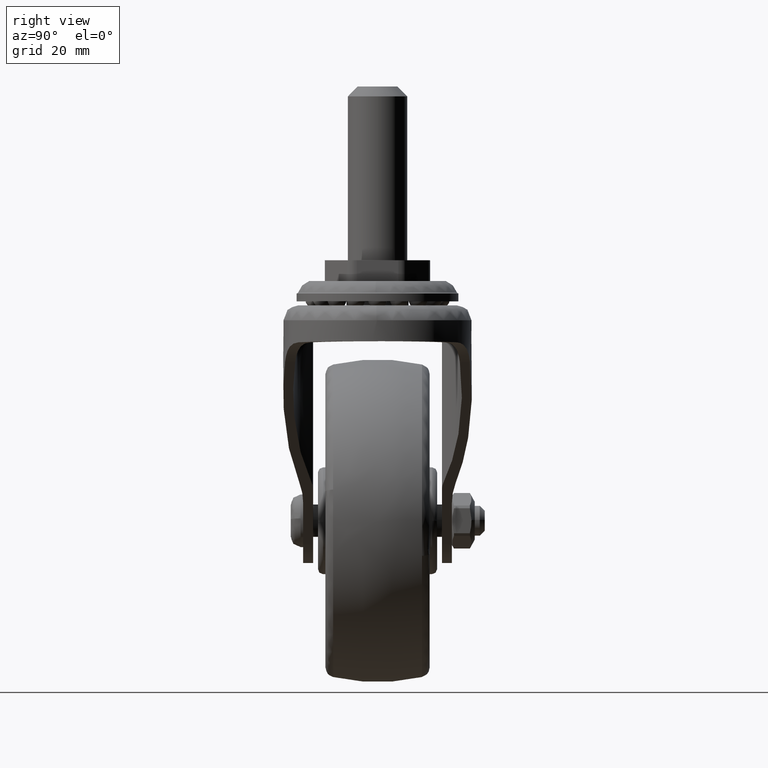
[diagram: clean part render]
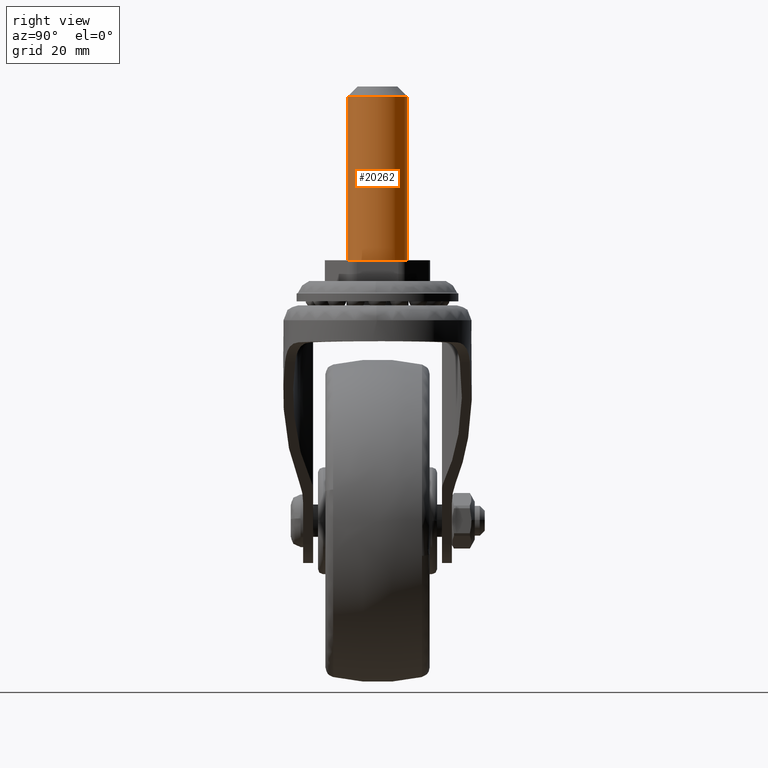
[diagram: same view with one face highlighted and labeled with its STEP entity id]
A machine part, right view. The second image highlights one B-rep face of the part: STEP entity #20262.
In plain terms, the highlighted face is a freeform B-spline surface patch.
Its self-contained STEP definition (entity closure, byte-faithful):
#20092=CARTESIAN_POINT('',(23.633708762572009,5.988808790546838,85.500003999942209));
#20093=VERTEX_POINT('',#20092);
#20094=CARTESIAN_POINT('',(30.0,1.421085E-014,85.500004000000104));
#20095=VERTEX_POINT('',#20094);
#20096=CARTESIAN_POINT('',(23.633708762572009,5.988808790546838,85.500003999942209));
#20097=CARTESIAN_POINT('',(23.816683420203002,6.000000000041584,85.500003999943033));
#20098=CARTESIAN_POINT('',(24.000000000208932,6.000000000040941,85.500003999943928));
#20099=CARTESIAN_POINT('',(30.000000000101274,6.000000000019852,85.500003999972876));
#20100=CARTESIAN_POINT('',(30.0,1.421085E-014,85.500004000000104));
#20108=(BOUNDED_CURVE()B_SPLINE_CURVE(2,(#20096,#20097,#20098,#20099,#20100),.UNSPECIFIED.,.F.,.U.)B_SPLINE_CURVE_WITH_KNOTS((3,2,3),(0.239332962229459,0.250000000000000,0.500000000000000),.UNSPECIFIED.)CURVE()GEOMETRIC_REPRESENTATION_ITEM()RATIONAL_B_SPLINE_CURVE((0.976072041646393,0.987502787888727,1.0,0.707106781186548,1.0))REPRESENTATION_ITEM(''));
#20109=EDGE_CURVE('',#20093,#20095,#20108,.T.);
#20118=CARTESIAN_POINT('',(24.366291237427991,-5.988808790546810,85.500003999942209));
#20119=VERTEX_POINT('',#20118);
#20125=CARTESIAN_POINT('',(30.0,1.421085E-014,85.500004000000104));
#20126=CARTESIAN_POINT('',(29.999999999892349,-5.644236401045292,85.500003999971170));
#20127=CARTESIAN_POINT('',(24.366291237427987,-5.988808790546810,85.500003999942209));
#20135=(BOUNDED_CURVE()B_SPLINE_CURVE(2,(#20125,#20126,#20127),.UNSPECIFIED.,.F.,.U.)B_SPLINE_CURVE_WITH_KNOTS((3,3),(0.500000000000000,0.739332962229459),.UNSPECIFIED.)CURVE()GEOMETRIC_REPRESENTATION_ITEM()RATIONAL_B_SPLINE_CURVE((1.0,0.719603993297821,0.976072041646393))REPRESENTATION_ITEM(''));
#20136=EDGE_CURVE('',#20095,#20119,#20135,.T.);
#20196=CARTESIAN_POINT('',(23.633708762790860,5.988808790531214,86.325004000000121));
#20197=CARTESIAN_POINT('',(29.622517553322051,6.355100027740357,86.325004000000121));
#20198=CARTESIAN_POINT('',(29.988808790531198,0.366291237209156,86.325004000000121));
#20199=CARTESIAN_POINT('',(30.355100027740335,-5.622517553322045,86.325004000000121));
#20200=CARTESIAN_POINT('',(24.366291237209140,-5.988808790531186,86.325004000000121));
#20201=CARTESIAN_POINT('',(23.633708762790860,5.988808790531214,51.654379000000098));
#20202=CARTESIAN_POINT('',(29.622517553322051,6.355100027740357,51.654379000000098));
#20203=CARTESIAN_POINT('',(29.988808790531198,0.366291237209156,51.654379000000098));
#20204=CARTESIAN_POINT('',(30.355100027740335,-5.622517553322045,51.654379000000098));
#20205=CARTESIAN_POINT('',(24.366291237209140,-5.988808790531186,51.654379000000098));
#20213=(BOUNDED_SURFACE()B_SPLINE_SURFACE(2,1,((#20196,#20201),(#20197,#20202),(#20198,#20203),(#20199,#20204),(#20200,#20205)),.UNSPECIFIED.,.F.,.F.,.U.)B_SPLINE_SURFACE_WITH_KNOTS((3,2,3),(2,2),(0.0,9.941125496954278,19.882250993908560),(0.0,34.670625000000037),.UNSPECIFIED.)GEOMETRIC_REPRESENTATION_ITEM()RATIONAL_B_SPLINE_SURFACE(((1.0,1.0),(0.707106781186548,0.707106781186548),(1.0,1.0),(0.707106781186548,0.707106781186548),(1.0,1.0)))REPRESENTATION_ITEM('')SURFACE());
#20214=CARTESIAN_POINT('',(23.633708762661019,5.988808790523274,52.500004000000096));
#20215=VERTEX_POINT('',#20214);
#20216=CARTESIAN_POINT('',(23.633708762572009,5.988808790546838,85.500003999942209));
#20217=CARTESIAN_POINT('',(23.633708762661019,5.988808790523274,52.500004000000096));
#20218=QUASI_UNIFORM_CURVE('',1,(#20216,#20217),.UNSPECIFIED.,.F.,.U.);
#20219=EDGE_CURVE('',#20093,#20215,#20218,.T.);
#20220=ORIENTED_EDGE('',*,*,#20219,.F.);
#20221=ORIENTED_EDGE('',*,*,#20109,.T.);
#20222=ORIENTED_EDGE('',*,*,#20136,.T.);
#20223=CARTESIAN_POINT('',(24.366291237338981,-5.988808790523247,52.500004000000096));
#20224=VERTEX_POINT('',#20223);
#20225=CARTESIAN_POINT('',(24.366291237427991,-5.988808790546810,85.500003999942209));
#20226=CARTESIAN_POINT('',(24.366291237338981,-5.988808790523247,52.500004000000096));
#20227=QUASI_UNIFORM_CURVE('',1,(#20225,#20226),.UNSPECIFIED.,.F.,.U.);
#20228=EDGE_CURVE('',#20119,#20224,#20227,.T.);
#20229=ORIENTED_EDGE('',*,*,#20228,.T.);
#20230=CARTESIAN_POINT('',(30.0,1.421085E-014,52.500004000000096));
#20231=VERTEX_POINT('',#20230);
#20232=CARTESIAN_POINT('',(30.0,1.421085E-014,52.500004000000096));
#20233=CARTESIAN_POINT('',(30.000000000000004,-5.644236401311560,52.500004000000111));
#20234=CARTESIAN_POINT('',(24.366291237338977,-5.988808790523248,52.500004000000096));
#20242=(BOUNDED_CURVE()B_SPLINE_CURVE(2,(#20232,#20233,#20234),.UNSPECIFIED.,.F.,.U.)B_SPLINE_CURVE_WITH_KNOTS((3,3),(0.500000000000000,0.739332962238228),.UNSPECIFIED.)CURVE()GEOMETRIC_REPRESENTATION_ITEM()RATIONAL_B_SPLINE_CURVE((1.0,0.719603993287548,0.976072041665184))REPRESENTATION_ITEM(''));
#20243=EDGE_CURVE('',#20231,#20224,#20242,.T.);
#20244=ORIENTED_EDGE('',*,*,#20243,.F.);
#20245=CARTESIAN_POINT('',(23.633708762661012,5.988808790523275,52.500004000000104));
#20246=CARTESIAN_POINT('',(23.816683420143363,6.000000000000014,52.500004000000104));
#20247=CARTESIAN_POINT('',(24.0,6.000000000000014,52.500004000000096));
#20248=CARTESIAN_POINT('',(30.000000000000004,6.000000000000014,52.500004000000111));
#20249=CARTESIAN_POINT('',(30.0,1.421085E-014,52.500004000000096));
#20257=(BOUNDED_CURVE()B_SPLINE_CURVE(2,(#20245,#20246,#20247,#20248,#20249),.UNSPECIFIED.,.F.,.U.)B_SPLINE_CURVE_WITH_KNOTS((3,2,3),(0.239332962238227,0.250000000000000,0.500000000000000),.UNSPECIFIED.)CURVE()GEOMETRIC_REPRESENTATION_ITEM()RATIONAL_B_SPLINE_CURVE((0.976072041665184,0.987502787898999,1.0,0.707106781186548,1.0))REPRESENTATION_ITEM(''));
#20258=EDGE_CURVE('',#20215,#20231,#20257,.T.);
#20259=ORIENTED_EDGE('',*,*,#20258,.F.);
#20260=EDGE_LOOP('',(#20220,#20221,#20222,#20229,#20244,#20259));
#20261=FACE_OUTER_BOUND('',#20260,.T.);
#20262=ADVANCED_FACE('',(#20261),#20213,.T.);